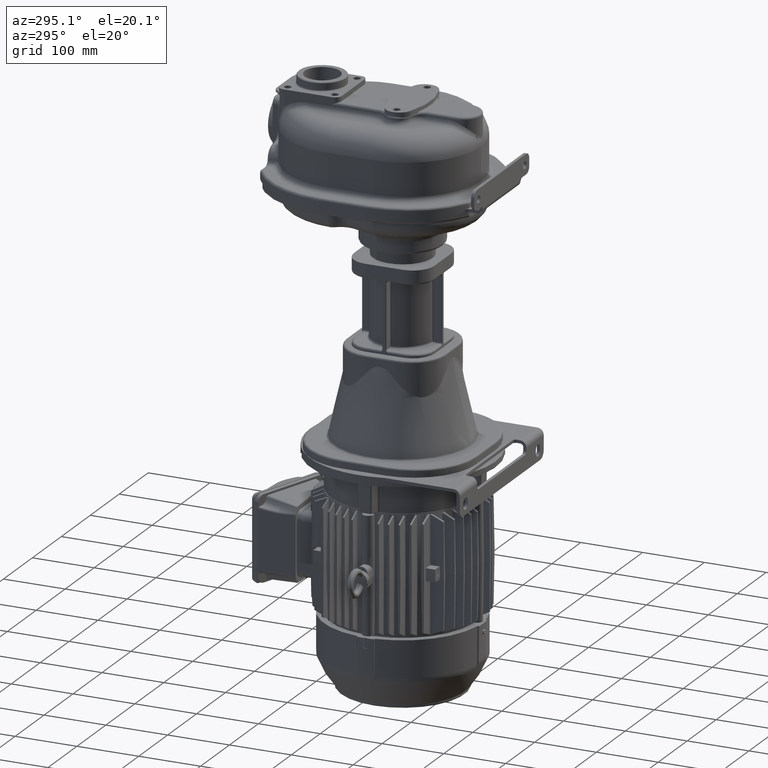
[diagram: clean part render]
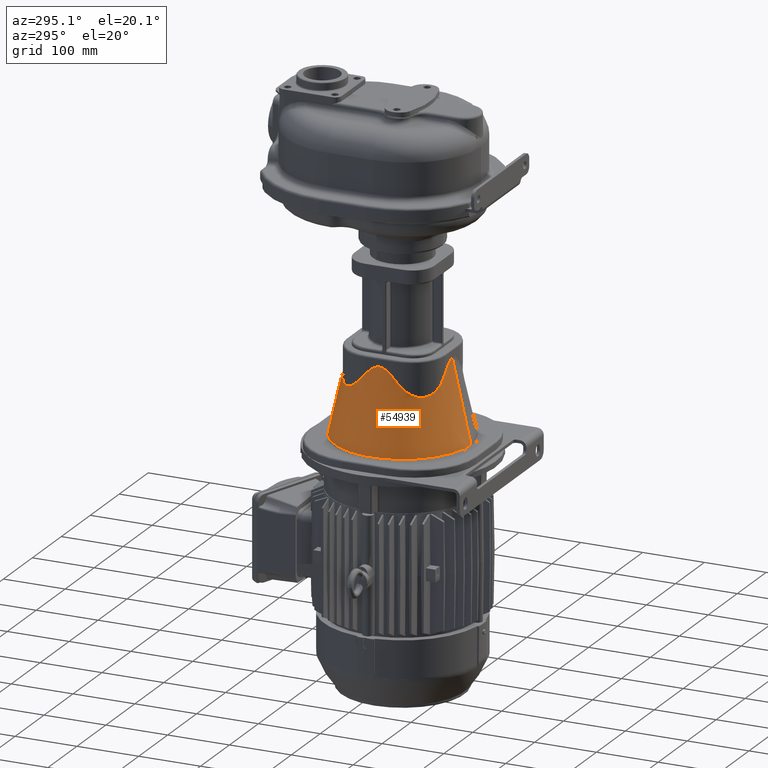
[diagram: same view with one face highlighted and labeled with its STEP entity id]
A machine part, auxiliary view. The second image highlights one B-rep face of the part: STEP entity #54939.
In plain terms, the highlighted conical surface has half-angle 13 deg.
Its self-contained STEP definition (entity closure, byte-faithful):
#4029=DIRECTION('',(0.E0,2.249510543492E-1,9.743700647840E-1));
#4030=VECTOR('',#4029,1.336754637237E2);
#4031=CARTESIAN_POINT('',(0.E0,4.985267368980E1,-4.171748531630E2));
#4032=LINE('',#4031,#4030);
#4069=CARTESIAN_POINT('',(0.E0,7.992311019507E1,-2.869254829145E2));
#4371=DIRECTION('',(0.E0,-2.249510543492E-1,9.743700647840E-1));
#4372=VECTOR('',#4371,1.336754637237E2);
#4373=CARTESIAN_POINT('',(0.E0,2.701473263102E2,-4.171748531630E2));
#4374=LINE('',#4373,#4372);
#4375=CARTESIAN_POINT('',(0.E0,1.6E2,-4.171748531630E2));
#4376=DIRECTION('',(0.E0,0.E0,1.E0));
#4377=DIRECTION('',(0.E0,1.E0,0.E0));
#4378=AXIS2_PLACEMENT_3D('',#4375,#4376,#4377);
#4400=CARTESIAN_POINT('',(-2.318802712144E1,2.401919271283E2,
-3.016535035420E2));
#4401=CARTESIAN_POINT('',(-2.285551342856E1,2.401888284097E2,
-3.012405343312E2));
#4402=CARTESIAN_POINT('',(-2.220063008708E1,2.401828271773E2,
-3.004434611120E2));
#4403=CARTESIAN_POINT('',(-2.125382690515E1,2.401744386740E2,
-2.993361914223E2));
#4404=CARTESIAN_POINT('',(-2.033491442037E1,2.401665761257E2,
-2.983042641427E2));
#4405=CARTESIAN_POINT('',(-1.944374970766E1,2.401592215150E2,
-2.973441686429E2));
#4406=CARTESIAN_POINT('',(-1.857913409422E1,2.401523472388E2,
-2.964512436800E2));
#4407=CARTESIAN_POINT('',(-1.773910592904E1,2.401459210402E2,
-2.956204018926E2));
#4408=CARTESIAN_POINT('',(-1.692261629588E1,2.401399190177E2,
-2.948477660379E2));
#4409=CARTESIAN_POINT('',(-1.612820782508E1,2.401343151445E2,
-2.941293030081E2));
#4410=CARTESIAN_POINT('',(-1.535469070902E1,2.401290865498E2,
-2.934614859618E2));
#4411=CARTESIAN_POINT('',(-1.460085576886E1,2.401242113218E2,
-2.928409915466E2));
#4412=CARTESIAN_POINT('',(-1.386556952937E1,2.401196691771E2,
-2.922647764627E2));
#4413=CARTESIAN_POINT('',(-1.314774130493E1,2.401154411010E2,
-2.917300297879E2));
#4414=CARTESIAN_POINT('',(-1.244632635228E1,2.401115093631E2,
-2.912341626293E2));
#4415=CARTESIAN_POINT('',(-1.176032224814E1,2.401078574524E2,
-2.907747915795E2));
#4416=CARTESIAN_POINT('',(-1.108876545749E1,2.401044700247E2,
-2.903497240789E2));
#4417=CARTESIAN_POINT('',(-1.043072889772E1,2.401013328514E2,
-2.899569454145E2));
#4418=CARTESIAN_POINT('',(-9.785319290665E0,2.400984327682E2,
-2.895946065795E2));
#4419=CARTESIAN_POINT('',(-9.151674792210E0,2.400957576279E2,
-2.892610132510E2));
#4420=CARTESIAN_POINT('',(-8.528963039988E0,2.400932962405E2,
-2.889546157630E2));
#4421=CARTESIAN_POINT('',(-7.916378401235E0,2.400910383110E2,
-2.886739994824E2));
#4422=CARTESIAN_POINT('',(-7.313139905819E0,2.400889744042E2,
-2.884178764693E2));
#4423=CARTESIAN_POINT('',(-6.718489258861E0,2.400870959077E2,
-2.881850778668E2));
#4424=CARTESIAN_POINT('',(-6.131688864735E0,2.400853949986E2,
-2.879745469814E2));
#4425=CARTESIAN_POINT('',(-5.552020066422E0,2.400838646113E2,
-2.877853331193E2));
#4426=CARTESIAN_POINT('',(-4.978781737738E0,2.400824984051E2,
-2.876165859977E2));
#4427=CARTESIAN_POINT('',(-4.411286319022E0,2.400812907377E2,
-2.874675503812E2));
#4428=CARTESIAN_POINT('',(-3.848867301554E0,2.400802366238E2,
-2.873375632177E2));
#4429=CARTESIAN_POINT('',(-3.290848536895E0,2.400793316750E2,
-2.872260444636E2));
#4430=CARTESIAN_POINT('',(-2.736620430266E0,2.400785722097E2,
-2.871325070367E2));
#4431=CARTESIAN_POINT('',(-2.185460292446E0,2.400779549780E2,
-2.870565257799E2));
#4432=CARTESIAN_POINT('',(-1.636856809584E0,2.400774776197E2,
-2.869977839893E2));
#4433=CARTESIAN_POINT('',(-1.090121296774E0,2.400771379894E2,
-2.869560073569E2));
#4434=CARTESIAN_POINT('',(-5.443069013630E-1,2.400769347612E2,
-2.869310107325E2));
#4435=CARTESIAN_POINT('',(-1.813115590760E-1,2.400768898164E2,
-2.869254830110E2));
#4436=CARTESIAN_POINT('',(0.E0,2.400768898049E2,-2.869254829145E2));
#4438=CARTESIAN_POINT('',(-8.019192712830E1,1.831880271214E2,
-3.016535035420E2));
#4439=CARTESIAN_POINT('',(-8.019604316395E1,1.836297114636E2,
-3.022020581808E2));
#4440=CARTESIAN_POINT('',(-8.019384486431E1,1.845065427539E2,
-3.032757959771E2));
#4441=CARTESIAN_POINT('',(-8.016073951169E1,1.857996074094E2,
-3.048158967747E2));
#4442=CARTESIAN_POINT('',(-8.009926451828E1,1.870711932844E2,
-3.062889828572E2));
#4443=CARTESIAN_POINT('',(-8.001082576534E1,1.883206537647E2,
-3.076967760527E2));
#4444=CARTESIAN_POINT('',(-7.989680230789E1,1.895477498938E2,
-3.090413982507E2));
#4445=CARTESIAN_POINT('',(-7.975850033586E1,1.907525223418E2,
-3.103251549307E2));
#4446=CARTESIAN_POINT('',(-7.959719694231E1,1.919348756416E2,
-3.115500911581E2));
#4447=CARTESIAN_POINT('',(-7.941410492236E1,1.930949007514E2,
-3.127183426967E2));
#4448=CARTESIAN_POINT('',(-7.921039162322E1,1.942326844292E2,
-3.138319327821E2));
#4449=CARTESIAN_POINT('',(-7.898716935473E1,1.953483835196E2,
-3.148928539302E2));
#4450=CARTESIAN_POINT('',(-7.874549744019E1,1.964421972535E2,
-3.159030410081E2));
#4451=CARTESIAN_POINT('',(-7.848638178980E1,1.975143666846E2,
-3.168643735258E2));
#4452=CARTESIAN_POINT('',(-7.821077495176E1,1.985651700141E2,
-3.177786734042E2));
#4453=CARTESIAN_POINT('',(-7.791957660670E1,1.995949180592E2,
-3.186477032388E2));
#4454=CARTESIAN_POINT('',(-7.761363388924E1,2.006039512103E2,
-3.194731659665E2));
#4455=CARTESIAN_POINT('',(-7.729374207963E1,2.015926357070E2,
-3.202567039851E2));
#4456=CARTESIAN_POINT('',(-7.696064573779E1,2.025613592418E2,
-3.209998977172E2));
#4457=CARTESIAN_POINT('',(-7.661503950323E1,2.035105285991E2,
-3.217042662828E2));
#4458=CARTESIAN_POINT('',(-7.625756918070E1,2.044405666142E2,
-3.223712673987E2));
#4459=CARTESIAN_POINT('',(-7.588883296963E1,2.053519091998E2,
-3.230022973494E2));
#4460=CARTESIAN_POINT('',(-7.550938272917E1,2.062450026850E2,
-3.235986912213E2));
#4461=CARTESIAN_POINT('',(-7.511972524178E1,2.071203014712E2,
-3.241617233675E2));
#4462=CARTESIAN_POINT('',(-7.472032353381E1,2.079782657976E2,
-3.246926079371E2));
#4463=CARTESIAN_POINT('',(-7.431159837302E1,2.088193593577E2,
-3.251924993073E2));
#4464=CARTESIAN_POINT('',(-7.389392971502E1,2.096440473192E2,
-3.256624928613E2));
#4465=CARTESIAN_POINT('',(-7.346765795594E1,2.104527948474E2,
-3.261036259884E2));
#4466=CARTESIAN_POINT('',(-7.303308532275E1,2.112460654159E2,
-3.265168788624E2));
#4467=CARTESIAN_POINT('',(-7.259047725686E1,2.120243192566E2,
-3.269031752839E2));
#4468=CARTESIAN_POINT('',(-7.214006375262E1,2.127880119762E2,
-3.272633835718E2));
#4469=CARTESIAN_POINT('',(-7.168204064652E1,2.135375933264E2,
-3.275983174994E2));
#4470=CARTESIAN_POINT('',(-7.121657088854E1,2.142735060285E2,
-3.279087371719E2));
#4471=CARTESIAN_POINT('',(-7.074378595939E1,2.149961844945E2,
-3.281953499886E2));
#4472=CARTESIAN_POINT('',(-7.026378693634E1,2.157060540621E2,
-3.284588116160E2));
#4473=CARTESIAN_POINT('',(-6.977664561084E1,2.164035301184E2,
-3.286997268139E2));
#4474=CARTESIAN_POINT('',(-6.928240557522E1,2.170890172906E2,
-3.289186502767E2));
#4475=CARTESIAN_POINT('',(-6.878108329425E1,2.177629086498E2,
-3.291160874165E2));
#4476=CARTESIAN_POINT('',(-6.827266907320E1,2.184255850473E2,
-3.292924951265E2));
#4477=CARTESIAN_POINT('',(-6.775712792790E1,2.190774145389E2,
-3.294482824774E2));
#4478=CARTESIAN_POINT('',(-6.723440081242E1,2.197187513717E2,
-3.295838113198E2));
#4479=CARTESIAN_POINT('',(-6.670440526156E1,2.203499357361E2,
-3.296993971104E2));
#4480=CARTESIAN_POINT('',(-6.616703628976E1,2.209712930264E2,
-3.297953092215E2));
#4481=CARTESIAN_POINT('',(-6.562216691794E1,2.215831335788E2,
-3.298717714636E2));
#4482=CARTESIAN_POINT('',(-6.506964901681E1,2.221857519702E2,
-3.299289624011E2));
#4483=CARTESIAN_POINT('',(-6.450931405015E1,2.227794264186E2,
-3.299670156436E2));
#4484=CARTESIAN_POINT('',(-6.394097362890E1,2.233644183622E2,
-3.299860201160E2));
#4485=CARTESIAN_POINT('',(-6.336442025569E1,2.239409717641E2,
-3.299860201496E2));
#4486=CARTESIAN_POINT('',(-6.277942810638E1,2.245093124369E2,
-3.299670157277E2));
#4487=CARTESIAN_POINT('',(-6.218575320248E1,2.250696478744E2,
-3.299289625016E2));
#4488=CARTESIAN_POINT('',(-6.158313422857E1,2.256221663368E2,
-3.298717715427E2));
#4489=CARTESIAN_POINT('',(-6.097129302403E1,2.261670362980E2,
-3.297953092292E2));
#4490=CARTESIAN_POINT('',(-6.034993510204E1,2.267044058066E2,
-3.296993970084E2));
#4491=CARTESIAN_POINT('',(-5.971875020617E1,2.272344017811E2,
-3.295838110956E2));
#4492=CARTESIAN_POINT('',(-5.907741282211E1,2.277571293109E2,
-3.294482820967E2));
#4493=CARTESIAN_POINT('',(-5.842558275348E1,2.282726708641E2,
-3.292924945496E2));
#4494=CARTESIAN_POINT('',(-5.776290564138E1,2.287810855724E2,
-3.291160865809E2));
#4495=CARTESIAN_POINT('',(-5.708901358494E1,2.292824082943E2,
-3.289186491485E2));
#4496=CARTESIAN_POINT('',(-5.640352578426E1,2.297766486904E2,
-3.286997253767E2));
#4497=CARTESIAN_POINT('',(-5.570604915850E1,2.302637903101E2,
-3.284588098635E2));
#4498=CARTESIAN_POINT('',(-5.499617903772E1,2.307437895930E2,
-3.281953478990E2));
#4499=CARTESIAN_POINT('',(-5.427349998033E1,2.312165747831E2,
-3.279087347011E2));
#4500=CARTESIAN_POINT('',(-5.353758671597E1,2.316820447596E2,
-3.275983146318E2));
#4501=CARTESIAN_POINT('',(-5.278800487750E1,2.321400680169E2,
-3.272633803142E2));
#4502=CARTESIAN_POINT('',(-5.202431174979E1,2.325904816067E2,
-3.269031716518E2));
#4503=CARTESIAN_POINT('',(-5.124605752840E1,2.330330897278E2,
-3.265168748524E2));
#4504=CARTESIAN_POINT('',(-5.045278658972E1,2.334676623955E2,
-3.261036215875E2));
#4505=CARTESIAN_POINT('',(-4.964403872955E1,2.338939341550E2,
-3.256624880726E2));
#4506=CARTESIAN_POINT('',(-4.881935049620E1,2.343116027707E2,
-3.251924941498E2));
#4507=CARTESIAN_POINT('',(-4.797825670958E1,2.347203278576E2,
-3.246926024251E2));
#4508=CARTESIAN_POINT('',(-4.712029219176E1,2.351197294673E2,
-3.241617175124E2));
#4509=CARTESIAN_POINT('',(-4.624499327686E1,2.355093868216E2,
-3.235986850542E2));
#4510=CARTESIAN_POINT('',(-4.535189974495E1,2.358888368901E2,
-3.230022909187E2));
#4511=CARTESIAN_POINT('',(-4.444055716761E1,2.362575729061E2,
-3.223712607395E2));
#4512=CARTESIAN_POINT('',(-4.351051919312E1,2.366150430216E2,
-3.217042594177E2));
#4513=CARTESIAN_POINT('',(-4.256134998127E1,2.369606490134E2,
-3.209998907260E2));
#4514=CARTESIAN_POINT('',(-4.159262676023E1,2.372937450614E2,
-3.202566970027E2));
#4515=CARTESIAN_POINT('',(-4.060394264904E1,2.376136365691E2,
-3.194731590690E2));
#4516=CARTESIAN_POINT('',(-3.959490982231E1,2.379195790171E2,
-3.186476963910E2));
#4517=CARTESIAN_POINT('',(-3.856516225394E1,2.382107770620E2,
-3.177786667485E2));
#4518=CARTESIAN_POINT('',(-3.751435965210E1,2.384863835566E2,
-3.168643673093E2));
#4519=CARTESIAN_POINT('',(-3.644219099251E1,2.387454988826E2,
-3.159030353016E2));
#4520=CARTESIAN_POINT('',(-3.534837791006E1,2.389871705297E2,
-3.148928486631E2));
#4521=CARTESIAN_POINT('',(-3.423267966047E1,2.392103925190E2,
-3.138319281703E2));
#4522=CARTESIAN_POINT('',(-3.309489723621E1,2.394141055052E2,
-3.127183391923E2));
#4523=CARTESIAN_POINT('',(-3.193487273115E1,2.395971973729E2,
-3.115500881910E2));
#4524=CARTESIAN_POINT('',(-3.075251887290E1,2.397585007726E2,
-3.103251512868E2));
#4525=CARTESIAN_POINT('',(-2.954774680376E1,2.398968026262E2,
-3.090413949105E2));
#4526=CARTESIAN_POINT('',(-2.832065096691E1,2.400108259922E2,
-3.076967729426E2));
#4527=CARTESIAN_POINT('',(-2.707119101156E1,2.400992646478E2,
-3.062889802484E2));
#4528=CARTESIAN_POINT('',(-2.579960567461E1,2.401607395711E2,
-3.048158947276E2));
#4529=CARTESIAN_POINT('',(-2.450654166477E1,2.401938448719E2,
-3.032757946500E2));
#4530=CARTESIAN_POINT('',(-2.362971106651E1,2.401960431634E2,
-3.022020576940E2));
#4531=CARTESIAN_POINT('',(-2.318802712144E1,2.401919271283E2,
-3.016535035420E2));
#4533=CARTESIAN_POINT('',(-8.019192712832E1,1.368119728786E2,
-3.016535035420E2));
#4534=CARTESIAN_POINT('',(-8.018881694612E1,1.371457166325E2,
-3.012390066384E2));
#4535=CARTESIAN_POINT('',(-8.018279478488E1,1.378029271874E2,
-3.004391640566E2));
#4536=CARTESIAN_POINT('',(-8.017438110480E1,1.387527495381E2,
-2.993286093671E2));
#4537=CARTESIAN_POINT('',(-8.016649848145E1,1.396742907584E2,
-2.982940995812E2));
#4538=CARTESIAN_POINT('',(-8.015912787323E1,1.405677784367E2,
-2.973319753072E2));
#4539=CARTESIAN_POINT('',(-8.015224185827E1,1.414343526662E2,
-2.964375859571E2));
#4540=CARTESIAN_POINT('',(-8.014580719929E1,1.422760565293E2,
-2.956057113735E2));
#4541=CARTESIAN_POINT('',(-8.013979972677E1,1.430939363294E2,
-2.948324364869E2));
#4542=CARTESIAN_POINT('',(-8.013419295510E1,1.438894752396E2,
-2.941136654338E2));
#4543=CARTESIAN_POINT('',(-8.012896363827E1,1.446638840022E2,
-2.934458193082E2));
#4544=CARTESIAN_POINT('',(-8.012408961700E1,1.454183867559E2,
-2.928255322892E2));
#4545=CARTESIAN_POINT('',(-8.011955027227E1,1.461541354605E2,
-2.922497191692E2));
#4546=CARTESIAN_POINT('',(-8.011532631399E1,1.468722353892E2,
-2.917155339768E2));
#4547=CARTESIAN_POINT('',(-8.011139974940E1,1.475737462550E2,-2.912203556E2));
#4548=CARTESIAN_POINT('',(-8.010775383877E1,1.482596840160E2,
-2.907617724333E2));
#4549=CARTESIAN_POINT('',(-8.010437303704E1,1.489310250679E2,
-2.903375668161E2));
#4550=CARTESIAN_POINT('',(-8.010124294168E1,1.495887085934E2,
-2.899457018429E2));
#4551=CARTESIAN_POINT('',(-8.009835025639E1,1.502336385752E2,
-2.895843093560E2));
#4552=CARTESIAN_POINT('',(-8.009568269606E1,1.508666868411E2,
-2.892516780267E2));
#4553=CARTESIAN_POINT('',(-8.009322892729E1,1.514886957004E2,
-2.889462428117E2));
#4554=CARTESIAN_POINT('',(-8.009097853506E1,1.521004801247E2,
-2.886665756116E2));
#4555=CARTESIAN_POINT('',(-8.008892198346E1,1.527028299085E2,
-2.884113766901E2));
#4556=CARTESIAN_POINT('',(-8.008705057972E1,1.532965116926E2,
-2.881794669062E2));
#4557=CARTESIAN_POINT('',(-8.008535643973E1,1.538822709210E2,
-2.879697806671E2));
#4558=CARTESIAN_POINT('',(-8.008383245055E1,1.544608335564E2,
-2.877813596010E2));
#4559=CARTESIAN_POINT('',(-8.008247219537E1,1.550329076649E2,
-2.876133466799E2));
#4560=CARTESIAN_POINT('',(-8.008126995341E1,1.555991857648E2,
-2.874649810365E2));
#4561=CARTESIAN_POINT('',(-8.008022067771E1,1.561603464452E2,
-2.873355935072E2));
#4562=CARTESIAN_POINT('',(-8.007931997477E1,1.567170560090E2,
-2.872246026861E2));
#4563=CARTESIAN_POINT('',(-8.007856408760E1,1.572699700662E2,
-2.871315115060E2));
#4564=CARTESIAN_POINT('',(-8.007794987617E1,1.578197351006E2,
-2.870559042920E2));
#4565=CARTESIAN_POINT('',(-8.007747481150E1,1.583669899981E2,
-2.869974443455E2));
#4566=CARTESIAN_POINT('',(-8.007713690647E1,1.589123674303E2,
-2.869558717066E2));
#4567=CARTESIAN_POINT('',(-8.007693473204E1,1.594564956433E2,
-2.869310016924E2));
#4568=CARTESIAN_POINT('',(-8.007686743546E1,1.599999999776E2,
-2.869227239285E2));
#4569=CARTESIAN_POINT('',(-8.007693473210E1,1.605435043117E2,
-2.869310016913E2));
#4570=CARTESIAN_POINT('',(-8.007713690654E1,1.610876325245E2,
-2.869558717043E2));
#4571=CARTESIAN_POINT('',(-8.007747481155E1,1.616330099566E2,
-2.869974443417E2));
#4572=CARTESIAN_POINT('',(-8.007794987607E1,1.621802648539E2,
-2.870559042862E2));
#4573=CARTESIAN_POINT('',(-8.007856408745E1,1.627300298882E2,
-2.871315114986E2));
#4574=CARTESIAN_POINT('',(-8.007931997462E1,1.632829439452E2,
-2.872246026773E2));
#4575=CARTESIAN_POINT('',(-8.008022067761E1,1.638396535085E2,
-2.873355934972E2));
#4576=CARTESIAN_POINT('',(-8.008126995336E1,1.644008141883E2,
-2.874649810251E2));
#4577=CARTESIAN_POINT('',(-8.008247219533E1,1.649670922876E2,
-2.876133466670E2));
#4578=CARTESIAN_POINT('',(-8.008383245049E1,1.655391663956E2,
-2.877813595863E2));
#4579=CARTESIAN_POINT('',(-8.008535643959E1,1.661177290304E2,
-2.879697806505E2));
#4580=CARTESIAN_POINT('',(-8.008705057951E1,1.667034882586E2,
-2.881794668876E2));
#4581=CARTESIAN_POINT('',(-8.008892198326E1,1.672971700419E2,
-2.884113766697E2));
#4582=CARTESIAN_POINT('',(-8.009097853488E1,1.678995198247E2,
-2.886665755893E2));
#4583=CARTESIAN_POINT('',(-8.009322892711E1,1.685113042480E2,
-2.889462427874E2));
#4584=CARTESIAN_POINT('',(-8.009568269586E1,1.691333131062E2,-2.89251678E2));
#4585=CARTESIAN_POINT('',(-8.009835025614E1,1.697663613710E2,
-2.895843093268E2));
#4586=CARTESIAN_POINT('',(-8.010124294138E1,1.704112913520E2,
-2.899457018111E2));
#4587=CARTESIAN_POINT('',(-8.010437303678E1,1.710689748766E2,
-2.903375667821E2));
#4588=CARTESIAN_POINT('',(-8.010775383855E1,1.717403159271E2,
-2.907617723967E2));
#4589=CARTESIAN_POINT('',(-8.011139974917E1,1.724262536871E2,
-2.912203555605E2));
#4590=CARTESIAN_POINT('',(-8.011532631369E1,1.731277645512E2,
-2.917155339338E2));
#4591=CARTESIAN_POINT('',(-8.011955027184E1,1.738458644783E2,
-2.922497191224E2));
#4592=CARTESIAN_POINT('',(-8.012408961644E1,1.745816131817E2,
-2.928255322385E2));
#4593=CARTESIAN_POINT('',(-8.012896363762E1,1.753361159337E2,
-2.934458192532E2));
#4594=CARTESIAN_POINT('',(-8.013419295461E1,1.761105246943E2,
-2.941136653752E2));
#4595=CARTESIAN_POINT('',(-8.013979972656E1,1.769060636031E2,
-2.948324364257E2));
#4596=CARTESIAN_POINT('',(-8.014580719907E1,1.777239433999E2,
-2.956057113062E2));
#4597=CARTESIAN_POINT('',(-8.015224185800E1,1.785656472658E2,
-2.964375858896E2));
#4598=CARTESIAN_POINT('',(-8.015912787243E1,1.794322214796E2,
-2.973319752181E2));
#4599=CARTESIAN_POINT('',(-8.016649848082E1,1.803257091847E2,
-2.982940995181E2));
#4600=CARTESIAN_POINT('',(-8.017438110314E1,1.812472503548E2,
-2.993286092421E2));
#4601=CARTESIAN_POINT('',(-8.018279478350E1,1.821970727281E2,
-3.004391639514E2));
#4602=CARTESIAN_POINT('',(-8.018881694617E1,1.828542833308E2,
-3.012390065965E2));
#4603=CARTESIAN_POINT('',(-8.019192712830E1,1.831880271214E2,
-3.016535035420E2));
#4605=CARTESIAN_POINT('',(-2.318802712143E1,7.980807287171E1,
-3.016535035420E2));
#4606=CARTESIAN_POINT('',(-2.362971141996E1,7.980395683664E1,
-3.022020581263E2));
#4607=CARTESIAN_POINT('',(-2.450654267177E1,7.980615513430E1,
-3.032757958799E2));
#4608=CARTESIAN_POINT('',(-2.579960735954E1,7.983926048514E1,
-3.048158967163E2));
#4609=CARTESIAN_POINT('',(-2.707119358011E1,7.990073549916E1,
-3.062889831927E2));
#4610=CARTESIAN_POINT('',(-2.832065395E1,7.998917425043E1,-3.076967762592E2));
#4611=CARTESIAN_POINT('',(-2.954774999149E1,8.010319770255E1,
-3.090413983576E2));
#4612=CARTESIAN_POINT('',(-3.075252233279E1,8.024149966283E1,
-3.103251549199E2));
#4613=CARTESIAN_POINT('',(-3.193487589878E1,8.040280309343E1,
-3.115500914257E2));
#4614=CARTESIAN_POINT('',(-3.309490095582E1,8.058589511405E1,
-3.127183428956E2));
#4615=CARTESIAN_POINT('',(-3.423268445003E1,8.078960838089E1,
-3.138319328026E2));
#4616=CARTESIAN_POINT('',(-3.534838363049E1,8.101283066800E1,
-3.148928540333E2));
#4617=CARTESIAN_POINT('',(-3.644219750472E1,8.125450261793E1,
-3.159030412357E2));
#4618=CARTESIAN_POINT('',(-3.751436688471E1,8.151361826077E1,
-3.168643737043E2));
#4619=CARTESIAN_POINT('',(-3.856517009594E1,8.178922507089E1,
-3.177786734739E2));
#4620=CARTESIAN_POINT('',(-3.959491818393E1,8.208042342905E1,
-3.186477033435E2));
#4621=CARTESIAN_POINT('',(-4.060395143537E1,8.238636618098E1,
-3.194731661484E2));
#4622=CARTESIAN_POINT('',(-4.159263588280E1,8.270625797978E1,
-3.202567041208E2));
#4623=CARTESIAN_POINT('',(-4.256135935468E1,8.303935430220E1,
-3.209998978026E2));
#4624=CARTESIAN_POINT('',(-4.351052873503E1,8.338496054743E1,
-3.217042663819E2));
#4625=CARTESIAN_POINT('',(-4.444056679937E1,8.374243089216E1,
-3.223712675293E2));
#4626=CARTESIAN_POINT('',(-4.535190939224E1,8.411116711014E1,
-3.230022974805E2));
#4627=CARTESIAN_POINT('',(-4.624500286967E1,8.449061735111E1,
-3.235986913426E2));
#4628=CARTESIAN_POINT('',(-4.712030166437E1,8.488027484603E1,
-3.241617234896E2));
#4629=CARTESIAN_POINT('',(-4.797826600038E1,8.527967656269E1,
-3.246926080599E2));
#4630=CARTESIAN_POINT('',(-4.881935954717E1,8.568840172113E1,
-3.251924994175E2));
#4631=CARTESIAN_POINT('',(-4.964404748691E1,8.610607037171E1,
-3.256624929548E2));
#4632=CARTESIAN_POINT('',(-5.045279500394E1,8.653234212822E1,
-3.261036260720E2));
#4633=CARTESIAN_POINT('',(-5.124606555427E1,8.696691475469E1,
-3.265168789326E2));
#4634=CARTESIAN_POINT('',(-5.202431934605E1,8.740952279554E1,
-3.269031753260E2));
#4635=CARTESIAN_POINT('',(-5.278801200715E1,8.785993626621E1,
-3.272633835858E2));
#4636=CARTESIAN_POINT('',(-5.353759334704E1,8.831795936615E1,
-3.275983175087E2));
#4637=CARTESIAN_POINT('',(-5.427350608395E1,8.878342914686E1,
-3.279087371948E2));
#4638=CARTESIAN_POINT('',(-5.499618458879E1,8.925621410304E1,
-3.281953500256E2));
#4639=CARTESIAN_POINT('',(-5.570605413426E1,8.973621311348E1,
-3.284588116416E2));
#4640=CARTESIAN_POINT('',(-5.640353016803E1,9.022335442471E1,
-3.286997268293E2));
#4641=CARTESIAN_POINT('',(-5.708901736386E1,9.071759447759E1,
-3.289186503011E2));
#4642=CARTESIAN_POINT('',(-5.776290880481E1,9.121891682196E1,
-3.291160874609E2));
#4643=CARTESIAN_POINT('',(-5.842558529367E1,9.172733111924E1,
-3.292924951866E2));
#4644=CARTESIAN_POINT('',(-5.907741473281E1,9.224287222814E1,
-3.294482825214E2));
#4645=CARTESIAN_POINT('',(-5.971875148665E1,9.276559928342E1,
-3.295838113418E2));
#4646=CARTESIAN_POINT('',(-6.034993575469E1,9.329559475499E1,
-3.296993971121E2));
#4647=CARTESIAN_POINT('',(-6.097129305276E1,9.383296373264E1,
-3.297953092269E2));
#4648=CARTESIAN_POINT('',(-6.158313364324E1,9.437783313970E1,
-3.298717714722E2));
#4649=CARTESIAN_POINT('',(-6.218575200074E1,9.493035101312E1,
-3.299289624001E2));
#4650=CARTESIAN_POINT('',(-6.277942635421E1,9.549068588947E1,
-3.299670156385E2));
#4651=CARTESIAN_POINT('',(-6.336441820278E1,9.605902621384E1,
-3.299860201147E2));
#4652=CARTESIAN_POINT('',(-6.394097161296E1,9.663557959093E1,
-3.299860201509E2));
#4653=CARTESIAN_POINT('',(-6.450931239374E1,9.722057184714E1,
-3.299670157320E2));
#4654=CARTESIAN_POINT('',(-6.506964792701E1,9.781424685246E1,
-3.299289625007E2));
#4655=CARTESIAN_POINT('',(-6.562216641551E1,9.841686585914E1,
-3.298717715315E2));
#4656=CARTESIAN_POINT('',(-6.616703634078E1,9.902870702561E1,
-3.297953092206E2));
#4657=CARTESIAN_POINT('',(-6.670440584532E1,9.965006494256E1,
-3.296993970024E2));
#4658=CARTESIAN_POINT('',(-6.723440189826E1,1.002812499346E2,
-3.295838110684E2));
#4659=CARTESIAN_POINT('',(-6.775712948713E1,1.009225873970E2,
-3.294482820471E2));
#4660=CARTESIAN_POINT('',(-6.827267107508E1,1.015744175167E2,
-3.292924944834E2));
#4661=CARTESIAN_POINT('',(-6.878108570822E1,1.022370945396E2,
-3.291160865292E2));
#4662=CARTESIAN_POINT('',(-6.928240836805E1,1.029109865169E2,
-3.289186491154E2));
#4663=CARTESIAN_POINT('',(-6.977664874760E1,1.035964742958E2,
-3.286997253512E2));
#4664=CARTESIAN_POINT('',(-7.026379038108E1,1.042939509445E2,
-3.284588098268E2));
#4665=CARTESIAN_POINT('',(-7.074378967536E1,1.050038210866E2,
-3.281953478505E2));
#4666=CARTESIAN_POINT('',(-7.121657483815E1,1.057265001057E2,
-3.279087346656E2));
#4667=CARTESIAN_POINT('',(-7.168204479159E1,1.064624133358E2,
-3.275983146090E2));
#4668=CARTESIAN_POINT('',(-7.214006805472E1,1.072119951851E2,
-3.272633802856E2));
#4669=CARTESIAN_POINT('',(-7.259048167717E1,1.079756883708E2,
-3.269031715945E2));
#4670=CARTESIAN_POINT('',(-7.303308982236E1,1.087539426407E2,
-3.265168747666E2));
#4671=CARTESIAN_POINT('',(-7.346766249636E1,1.095472135978E2,
-3.261036214875E2));
#4672=CARTESIAN_POINT('',(-7.389393425807E1,1.103559614698E2,
-3.256624879615E2));
#4673=CARTESIAN_POINT('',(-7.431160288097E1,1.111806497257E2,
-3.251924940208E2));
#4674=CARTESIAN_POINT('',(-7.472032796983E1,1.120217435262E2,
-3.246926022822E2));
#4675=CARTESIAN_POINT('',(-7.511972957047E1,1.128797080352E2,
-3.241617173690E2));
#4676=CARTESIAN_POINT('',(-7.550938691694E1,1.137550069425E2,
-3.235986849102E2));
#4677=CARTESIAN_POINT('',(-7.588883698450E1,1.146481004827E2,
-3.230022907637E2));
#4678=CARTESIAN_POINT('',(-7.625757299284E1,1.155594430528E2,
-3.223712605841E2));
#4679=CARTESIAN_POINT('',(-7.661504308554E1,1.164894809783E2,
-3.217042592926E2));
#4680=CARTESIAN_POINT('',(-7.696064906616E1,1.174386501678E2,
-3.209998906133E2));
#4681=CARTESIAN_POINT('',(-7.729374513312E1,1.184073734524E2,
-3.202566968382E2));
#4682=CARTESIAN_POINT('',(-7.761363665085E1,1.193960576129E2,
-3.194731588574E2));
#4683=CARTESIAN_POINT('',(-7.791957906350E1,1.204050903389E2,
-3.186476962559E2));
#4684=CARTESIAN_POINT('',(-7.821077709489E1,1.214348378654E2,
-3.177786666467E2));
#4685=CARTESIAN_POINT('',(-7.848638361706E1,1.224856405873E2,
-3.168643670960E2));
#4686=CARTESIAN_POINT('',(-7.874549894967E1,1.235578092976E2,
-3.159030350387E2));
#4687=CARTESIAN_POINT('',(-7.898717056038E1,1.246516222388E2,
-3.148928485243E2));
#4688=CARTESIAN_POINT('',(-7.921039253048E1,1.257673203993E2,
-3.138319281121E2));
#4689=CARTESIAN_POINT('',(-7.941410554838E1,1.269051030083E2,
-3.127183389536E2));
#4690=CARTESIAN_POINT('',(-7.959719741410E1,1.280651275634E2,
-3.115500878852E2));
#4691=CARTESIAN_POINT('',(-7.975850077662E1,1.292474811603E2,
-3.103251512533E2));
#4692=CARTESIAN_POINT('',(-7.989680264027E1,1.304522533301E2,
-3.090413947642E2));
#4693=CARTESIAN_POINT('',(-8.001082600934E1,1.316793492358E2,
-3.076967727167E2));
#4694=CARTESIAN_POINT('',(-8.009926466587E1,1.329288092948E2,
-3.062889799008E2));
#4695=CARTESIAN_POINT('',(-8.016073956810E1,1.342003942839E2,
-3.048158947759E2));
#4696=CARTESIAN_POINT('',(-8.019384487048E1,1.354934582484E2,
-3.032757947529E2));
#4697=CARTESIAN_POINT('',(-8.019604316392E1,1.363702888874E2,
-3.022020577514E2));
#4698=CARTESIAN_POINT('',(-8.019192712832E1,1.368119728786E2,
-3.016535035420E2));
#4700=CARTESIAN_POINT('',(0.E0,7.992311019507E1,-2.869254829145E2));
#4701=CARTESIAN_POINT('',(-1.813114458939E-1,7.992311018129E1,
-2.869254830306E2));
#4702=CARTESIAN_POINT('',(-5.443066343163E-1,7.992306524213E1,
-2.869310107068E2));
#4703=CARTESIAN_POINT('',(-1.090121087413E0,7.992286201135E1,
-2.869560073411E2));
#4704=CARTESIAN_POINT('',(-1.636856733609E0,7.992252238193E1,
-2.869977839750E2));
#4705=CARTESIAN_POINT('',(-2.185460127918E0,7.992204502244E1,
-2.870565257592E2));
#4706=CARTESIAN_POINT('',(-2.736620290402E0,7.992142779005E1,
-2.871325070165E2));
#4707=CARTESIAN_POINT('',(-3.290848415146E0,7.992066832411E1,
-2.872260444459E2));
#4708=CARTESIAN_POINT('',(-3.848867167958E0,7.991976337525E1,
-2.873375631940E2));
#4709=CARTESIAN_POINT('',(-4.411286202181E0,7.991870926179E1,
-2.874675503554E2));
#4710=CARTESIAN_POINT('',(-4.978781624818E0,7.991750159562E1,
-2.876165859642E2));
#4711=CARTESIAN_POINT('',(-5.552019961927E0,7.991613538983E1,
-2.877853330832E2));
#4712=CARTESIAN_POINT('',(-6.131688763900E0,7.991460500225E1,
-2.879745469442E2));
#4713=CARTESIAN_POINT('',(-6.718489160324E0,7.991290409273E1,
-2.881850778290E2));
#4714=CARTESIAN_POINT('',(-7.313139808886E0,7.991102559594E1,
-2.884178764305E2));
#4715=CARTESIAN_POINT('',(-7.916378305584E0,7.990896168899E1,
-2.886739994414E2));
#4716=CARTESIAN_POINT('',(-8.528962946140E0,7.990670375964E1,
-2.889546157191E2));
#4717=CARTESIAN_POINT('',(-9.151674700696E0,7.990424237262E1,
-2.892610132040E2));
#4718=CARTESIAN_POINT('',(-9.785319201905E0,7.990156723237E1,
-2.895946065302E2));
#4719=CARTESIAN_POINT('',(-1.043072881149E1,7.989866714885E1,
-2.899569453650E2));
#4720=CARTESIAN_POINT('',(-1.108876537103E1,7.989552997535E1,
-2.903497240275E2));
#4721=CARTESIAN_POINT('',(-1.176032216033E1,7.989214254764E1,
-2.907747915242E2));
#4722=CARTESIAN_POINT('',(-1.244632626274E1,7.988849063723E1,
-2.912341625684E2));
#4723=CARTESIAN_POINT('',(-1.314774121305E1,7.988455889985E1,
-2.917300297198E2));
#4724=CARTESIAN_POINT('',(-1.386556943488E1,7.988033082432E1,
-2.922647763867E2));
#4725=CARTESIAN_POINT('',(-1.460085567177E1,7.987578867988E1,
-2.928409914639E2));
#4726=CARTESIAN_POINT('',(-1.535469060753E1,7.987091345154E1,
-2.934614858732E2));
#4727=CARTESIAN_POINT('',(-1.612820771683E1,7.986568485548E1,
-2.941293029158E2));
#4728=CARTESIAN_POINT('',(-1.692261618011E1,7.986008098191E1,
-2.948477659361E2));
#4729=CARTESIAN_POINT('',(-1.773910580091E1,7.985407895981E1,
-2.956204017723E2));
#4730=CARTESIAN_POINT('',(-1.857913397328E1,7.984765276178E1,
-2.964512435598E2));
#4731=CARTESIAN_POINT('',(-1.944374953409E1,7.984077848711E1,
-2.973441684562E2));
#4732=CARTESIAN_POINT('',(-2.033491433658E1,7.983342387603E1,
-2.983042640468E2));
#4733=CARTESIAN_POINT('',(-2.125382666886E1,7.982556132962E1,
-2.993361911469E2));
#4734=CARTESIAN_POINT('',(-2.220062987729E1,7.981717282544E1,
-3.004434608554E2));
#4735=CARTESIAN_POINT('',(-2.285551333954E1,7.981117159078E1,
-3.012405342238E2));
#4736=CARTESIAN_POINT('',(-2.318802712143E1,7.980807287171E1,
-3.016535035420E2));
#4738=CARTESIAN_POINT('',(0.E0,1.6E2,-4.171748531630E2));
#4739=DIRECTION('',(0.E0,0.E0,1.E0));
#4740=DIRECTION('',(-1.768808949384E-1,-9.842322637497E-1,0.E0));
#4741=AXIS2_PLACEMENT_3D('',#4738,#4739,#4740);
#41331=VERTEX_POINT('',#4400);
#41332=VERTEX_POINT('',#4436);
#41342=VERTEX_POINT('',#4069);
#41344=VERTEX_POINT('',#4736);
#41347=VERTEX_POINT('',#4533);
#41348=VERTEX_POINT('',#4603);
#41349=CARTESIAN_POINT('',(0.E0,2.701473263102E2,-4.171748531630E2));
#41350=VERTEX_POINT('',#41349);
#41357=CARTESIAN_POINT('',(-1.948295765282E1,5.158944767974E1,
-4.171748531630E2));
#41358=VERTEX_POINT('',#41357);
#41359=CARTESIAN_POINT('',(-2.131628207280E-14,4.985267368980E1,
-4.171748531630E2));
#41360=VERTEX_POINT('',#41359);
#54920=CARTESIAN_POINT('',(0.E0,1.6E2,-3.520501680387E2));
#54921=DIRECTION('',(0.E0,0.E0,-1.E0));
#54922=DIRECTION('',(0.E0,-1.E0,0.E0));
#54923=AXIS2_PLACEMENT_3D('',#54920,#54921,#54922);
#54924=CONICAL_SURFACE('',#54923,9.511210805792E1,1.3E1);
#54925=ORIENTED_EDGE('',*,*,#54891,.F.);
#54927=ORIENTED_EDGE('',*,*,#54926,.F.);
#54928=ORIENTED_EDGE('',*,*,#54908,.F.);
#54929=ORIENTED_EDGE('',*,*,#54898,.T.);
#54930=ORIENTED_EDGE('',*,*,#52824,.F.);
#54931=ORIENTED_EDGE('',*,*,#53172,.F.);
#54932=ORIENTED_EDGE('',*,*,#53438,.F.);
#54934=ORIENTED_EDGE('',*,*,#54933,.F.);
#54936=ORIENTED_EDGE('',*,*,#54935,.F.);
#54937=EDGE_LOOP('',(#54925,#54927,#54928,#54929,#54930,#54931,#54932,#54934,
#54936));
#54938=FACE_OUTER_BOUND('',#54937,.F.);
#54939=ADVANCED_FACE('',(#54938),#54924,.T.);
#4379=CIRCLE('',#4378,1.101473263102E2);
#4437=B_SPLINE_CURVE_WITH_KNOTS('',3,(#4400,#4401,#4402,#4403,#4404,#4405,#4406,
#4407,#4408,#4409,#4410,#4411,#4412,#4413,#4414,#4415,#4416,#4417,#4418,#4419,
#4420,#4421,#4422,#4423,#4424,#4425,#4426,#4427,#4428,#4429,#4430,#4431,#4432,
#4433,#4434,#4435,#4436),.UNSPECIFIED.,.F.,.F.,(4,1,1,1,1,1,1,1,1,1,1,1,1,1,1,1,
1,1,1,1,1,1,1,1,1,1,1,1,1,1,1,1,1,1,4),(0.E0,2.941176470588E-2,
5.882352941176E-2,8.823529411765E-2,1.176470588235E-1,1.470588235294E-1,
1.764705882353E-1,2.058823529412E-1,2.352941176471E-1,2.647058823529E-1,
2.941176470588E-1,3.235294117647E-1,3.529411764706E-1,3.823529411765E-1,
4.117647058824E-1,4.411764705882E-1,4.705882352941E-1,5.E-1,5.294117647059E-1,
5.588235294118E-1,5.882352941176E-1,6.176470588235E-1,6.470588235294E-1,
6.764705882353E-1,7.058823529412E-1,7.352941176471E-1,7.647058823529E-1,
7.941176470588E-1,8.235294117647E-1,8.529411764706E-1,8.823529411765E-1,
9.117647058824E-1,9.411764705882E-1,9.705882352941E-1,1.E0),.UNSPECIFIED.);
#4532=B_SPLINE_CURVE_WITH_KNOTS('',3,(#4438,#4439,#4440,#4441,#4442,#4443,#4444,
#4445,#4446,#4447,#4448,#4449,#4450,#4451,#4452,#4453,#4454,#4455,#4456,#4457,
#4458,#4459,#4460,#4461,#4462,#4463,#4464,#4465,#4466,#4467,#4468,#4469,#4470,
#4471,#4472,#4473,#4474,#4475,#4476,#4477,#4478,#4479,#4480,#4481,#4482,#4483,
#4484,#4485,#4486,#4487,#4488,#4489,#4490,#4491,#4492,#4493,#4494,#4495,#4496,
#4497,#4498,#4499,#4500,#4501,#4502,#4503,#4504,#4505,#4506,#4507,#4508,#4509,
#4510,#4511,#4512,#4513,#4514,#4515,#4516,#4517,#4518,#4519,#4520,#4521,#4522,
#4523,#4524,#4525,#4526,#4527,#4528,#4529,#4530,#4531),.UNSPECIFIED.,.F.,.F.,(4,
1,1,1,1,1,1,1,1,1,1,1,1,1,1,1,1,1,1,1,1,1,1,1,1,1,1,1,1,1,1,1,1,1,1,1,1,1,1,1,1,
1,1,1,1,1,1,1,1,1,1,1,1,1,1,1,1,1,1,1,1,1,1,1,1,1,1,1,1,1,1,1,1,1,1,1,1,1,1,1,1,
1,1,1,1,1,1,1,1,1,1,4),(0.E0,1.098901098901E-2,2.197802197802E-2,
3.296703296703E-2,4.395604395604E-2,5.494505494505E-2,6.593406593407E-2,
7.692307692308E-2,8.791208791209E-2,9.890109890110E-2,1.098901098901E-1,
1.208791208791E-1,1.318681318681E-1,1.428571428571E-1,1.538461538462E-1,
1.648351648352E-1,1.758241758242E-1,1.868131868132E-1,1.978021978022E-1,
2.087912087912E-1,2.197802197802E-1,2.307692307692E-1,2.417582417582E-1,
2.527472527473E-1,2.637362637363E-1,2.747252747253E-1,2.857142857143E-1,
2.967032967033E-1,3.076923076923E-1,3.186813186813E-1,3.296703296703E-1,
3.406593406593E-1,3.516483516484E-1,3.626373626374E-1,3.736263736264E-1,
3.846153846154E-1,3.956043956044E-1,4.065934065934E-1,4.175824175824E-1,
4.285714285714E-1,4.395604395604E-1,4.505494505495E-1,4.615384615385E-1,
4.725274725275E-1,4.835164835165E-1,4.945054945055E-1,5.054945054945E-1,
5.164835164835E-1,5.274725274725E-1,5.384615384615E-1,5.494505494505E-1,
5.604395604396E-1,5.714285714286E-1,5.824175824176E-1,5.934065934066E-1,
6.043956043956E-1,6.153846153846E-1,6.263736263736E-1,6.373626373626E-1,
6.483516483516E-1,6.593406593407E-1,6.703296703297E-1,6.813186813187E-1,
6.923076923077E-1,7.032967032967E-1,7.142857142857E-1,7.252747252747E-1,
7.362637362637E-1,7.472527472527E-1,7.582417582418E-1,7.692307692308E-1,
7.802197802198E-1,7.912087912088E-1,8.021978021978E-1,8.131868131868E-1,
8.241758241758E-1,8.351648351648E-1,8.461538461538E-1,8.571428571429E-1,
8.681318681319E-1,8.791208791209E-1,8.901098901099E-1,9.010989010989E-1,
9.120879120879E-1,9.230769230769E-1,9.340659340659E-1,9.450549450549E-1,
9.560439560440E-1,9.670329670330E-1,9.780219780220E-1,9.890109890110E-1,1.E0),
.UNSPECIFIED.);
#4604=B_SPLINE_CURVE_WITH_KNOTS('',3,(#4533,#4534,#4535,#4536,#4537,#4538,#4539,
#4540,#4541,#4542,#4543,#4544,#4545,#4546,#4547,#4548,#4549,#4550,#4551,#4552,
#4553,#4554,#4555,#4556,#4557,#4558,#4559,#4560,#4561,#4562,#4563,#4564,#4565,
#4566,#4567,#4568,#4569,#4570,#4571,#4572,#4573,#4574,#4575,#4576,#4577,#4578,
#4579,#4580,#4581,#4582,#4583,#4584,#4585,#4586,#4587,#4588,#4589,#4590,#4591,
#4592,#4593,#4594,#4595,#4596,#4597,#4598,#4599,#4600,#4601,#4602,#4603),
.UNSPECIFIED.,.F.,.F.,(4,1,1,1,1,1,1,1,1,1,1,1,1,1,1,1,1,1,1,1,1,1,1,1,1,1,1,1,
1,1,1,1,1,1,1,1,1,1,1,1,1,1,1,1,1,1,1,1,1,1,1,1,1,1,1,1,1,1,1,1,1,1,1,1,1,1,1,1,
4),(0.E0,1.470588235294E-2,2.941176470588E-2,4.411764705882E-2,
5.882352941176E-2,7.352941176471E-2,8.823529411765E-2,1.029411764706E-1,
1.176470588235E-1,1.323529411765E-1,1.470588235294E-1,1.617647058824E-1,
1.764705882353E-1,1.911764705882E-1,2.058823529412E-1,2.205882352941E-1,
2.352941176471E-1,2.5E-1,2.647058823529E-1,2.794117647059E-1,2.941176470588E-1,
3.088235294118E-1,3.235294117647E-1,3.382352941176E-1,3.529411764706E-1,
3.676470588235E-1,3.823529411765E-1,3.970588235294E-1,4.117647058824E-1,
4.264705882353E-1,4.411764705882E-1,4.558823529412E-1,4.705882352941E-1,
4.852941176471E-1,5.E-1,5.147058823529E-1,5.294117647059E-1,5.441176470588E-1,
5.588235294118E-1,5.735294117647E-1,5.882352941176E-1,6.029411764706E-1,
6.176470588235E-1,6.323529411765E-1,6.470588235294E-1,6.617647058824E-1,
6.764705882353E-1,6.911764705882E-1,7.058823529412E-1,7.205882352941E-1,
7.352941176471E-1,7.5E-1,7.647058823529E-1,7.794117647059E-1,7.941176470588E-1,
8.088235294118E-1,8.235294117647E-1,8.382352941176E-1,8.529411764706E-1,
8.676470588235E-1,8.823529411765E-1,8.970588235294E-1,9.117647058824E-1,
9.264705882353E-1,9.411764705882E-1,9.558823529412E-1,9.705882352941E-1,
9.852941176471E-1,1.E0),.UNSPECIFIED.);
#4699=B_SPLINE_CURVE_WITH_KNOTS('',3,(#4605,#4606,#4607,#4608,#4609,#4610,#4611,
#4612,#4613,#4614,#4615,#4616,#4617,#4618,#4619,#4620,#4621,#4622,#4623,#4624,
#4625,#4626,#4627,#4628,#4629,#4630,#4631,#4632,#4633,#4634,#4635,#4636,#4637,
#4638,#4639,#4640,#4641,#4642,#4643,#4644,#4645,#4646,#4647,#4648,#4649,#4650,
#4651,#4652,#4653,#4654,#4655,#4656,#4657,#4658,#4659,#4660,#4661,#4662,#4663,
#4664,#4665,#4666,#4667,#4668,#4669,#4670,#4671,#4672,#4673,#4674,#4675,#4676,
#4677,#4678,#4679,#4680,#4681,#4682,#4683,#4684,#4685,#4686,#4687,#4688,#4689,
#4690,#4691,#4692,#4693,#4694,#4695,#4696,#4697,#4698),.UNSPECIFIED.,.F.,.F.,(4,
1,1,1,1,1,1,1,1,1,1,1,1,1,1,1,1,1,1,1,1,1,1,1,1,1,1,1,1,1,1,1,1,1,1,1,1,1,1,1,1,
1,1,1,1,1,1,1,1,1,1,1,1,1,1,1,1,1,1,1,1,1,1,1,1,1,1,1,1,1,1,1,1,1,1,1,1,1,1,1,1,
1,1,1,1,1,1,1,1,1,1,4),(0.E0,1.098901098901E-2,2.197802197802E-2,
3.296703296703E-2,4.395604395604E-2,5.494505494505E-2,6.593406593407E-2,
7.692307692308E-2,8.791208791209E-2,9.890109890110E-2,1.098901098901E-1,
1.208791208791E-1,1.318681318681E-1,1.428571428571E-1,1.538461538462E-1,
1.648351648352E-1,1.758241758242E-1,1.868131868132E-1,1.978021978022E-1,
2.087912087912E-1,2.197802197802E-1,2.307692307692E-1,2.417582417582E-1,
2.527472527473E-1,2.637362637363E-1,2.747252747253E-1,2.857142857143E-1,
2.967032967033E-1,3.076923076923E-1,3.186813186813E-1,3.296703296703E-1,
3.406593406593E-1,3.516483516484E-1,3.626373626374E-1,3.736263736264E-1,
3.846153846154E-1,3.956043956044E-1,4.065934065934E-1,4.175824175824E-1,
4.285714285714E-1,4.395604395604E-1,4.505494505495E-1,4.615384615385E-1,
4.725274725275E-1,4.835164835165E-1,4.945054945055E-1,5.054945054945E-1,
5.164835164835E-1,5.274725274725E-1,5.384615384615E-1,5.494505494505E-1,
5.604395604396E-1,5.714285714286E-1,5.824175824176E-1,5.934065934066E-1,
6.043956043956E-1,6.153846153846E-1,6.263736263736E-1,6.373626373626E-1,
6.483516483516E-1,6.593406593407E-1,6.703296703297E-1,6.813186813187E-1,
6.923076923077E-1,7.032967032967E-1,7.142857142857E-1,7.252747252747E-1,
7.362637362637E-1,7.472527472527E-1,7.582417582418E-1,7.692307692308E-1,
7.802197802198E-1,7.912087912088E-1,8.021978021978E-1,8.131868131868E-1,
8.241758241758E-1,8.351648351648E-1,8.461538461538E-1,8.571428571429E-1,
8.681318681319E-1,8.791208791209E-1,8.901098901099E-1,9.010989010989E-1,
9.120879120879E-1,9.230769230769E-1,9.340659340659E-1,9.450549450549E-1,
9.560439560440E-1,9.670329670330E-1,9.780219780220E-1,9.890109890110E-1,1.E0),
.UNSPECIFIED.);
#4737=B_SPLINE_CURVE_WITH_KNOTS('',3,(#4700,#4701,#4702,#4703,#4704,#4705,#4706,
#4707,#4708,#4709,#4710,#4711,#4712,#4713,#4714,#4715,#4716,#4717,#4718,#4719,
#4720,#4721,#4722,#4723,#4724,#4725,#4726,#4727,#4728,#4729,#4730,#4731,#4732,
#4733,#4734,#4735,#4736),.UNSPECIFIED.,.F.,.F.,(4,1,1,1,1,1,1,1,1,1,1,1,1,1,1,1,
1,1,1,1,1,1,1,1,1,1,1,1,1,1,1,1,1,1,4),(0.E0,2.941176470588E-2,
5.882352941176E-2,8.823529411765E-2,1.176470588235E-1,1.470588235294E-1,
1.764705882353E-1,2.058823529412E-1,2.352941176471E-1,2.647058823529E-1,
2.941176470588E-1,3.235294117647E-1,3.529411764706E-1,3.823529411765E-1,
4.117647058824E-1,4.411764705882E-1,4.705882352941E-1,5.E-1,5.294117647059E-1,
5.588235294118E-1,5.882352941176E-1,6.176470588235E-1,6.470588235294E-1,
6.764705882353E-1,7.058823529412E-1,7.352941176471E-1,7.647058823529E-1,
7.941176470588E-1,8.235294117647E-1,8.529411764706E-1,8.823529411765E-1,
9.117647058824E-1,9.411764705882E-1,9.705882352941E-1,1.E0),.UNSPECIFIED.);
#4742=CIRCLE('',#4741,1.101473263102E2);
#52824=EDGE_CURVE('',#41331,#41332,#4437,.T.);
#53172=EDGE_CURVE('',#41348,#41331,#4532,.T.);
#53438=EDGE_CURVE('',#41347,#41348,#4604,.T.);
#54891=EDGE_CURVE('',#41360,#41342,#4032,.T.);
#54898=EDGE_CURVE('',#41350,#41332,#4374,.T.);
#54908=EDGE_CURVE('',#41350,#41358,#4379,.T.);
#54926=EDGE_CURVE('',#41358,#41360,#4742,.T.);
#54933=EDGE_CURVE('',#41344,#41347,#4699,.T.);
#54935=EDGE_CURVE('',#41342,#41344,#4737,.T.);